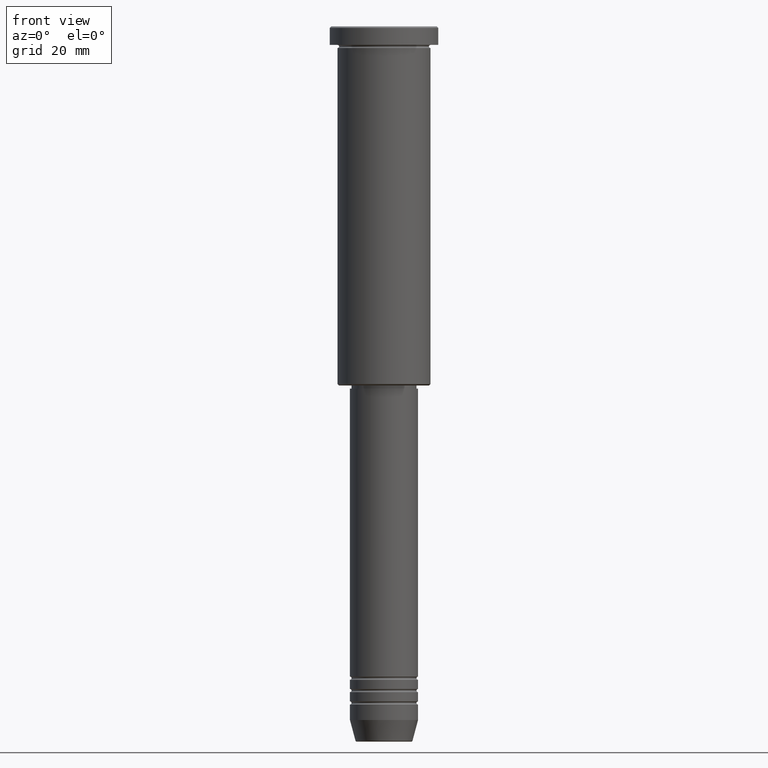
[diagram: clean part render]
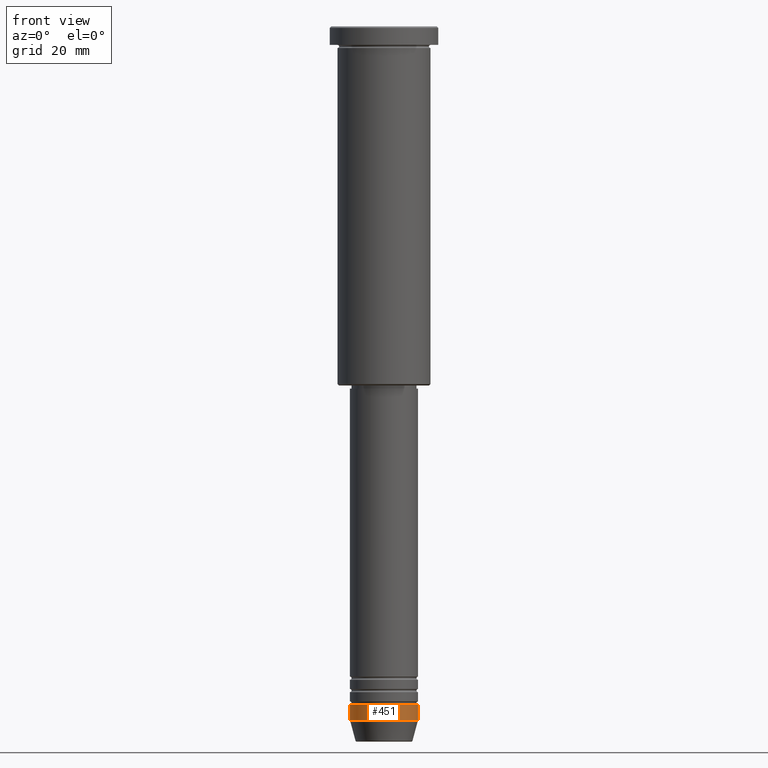
[diagram: same view with one face highlighted and labeled with its STEP entity id]
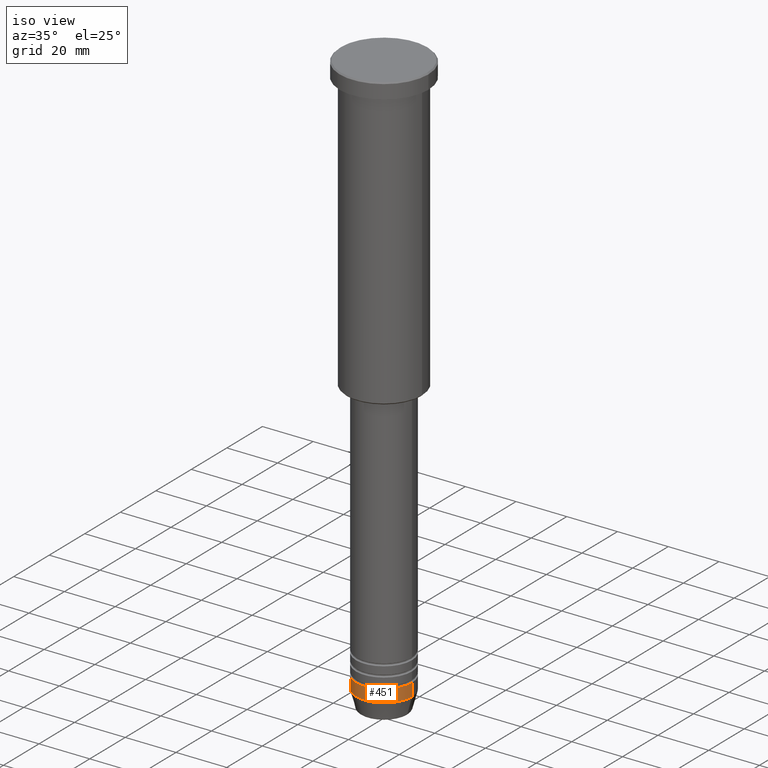
[diagram: same view with one face highlighted and labeled with its STEP entity id]
A machine part, front view. The second image highlights one B-rep face of the part: STEP entity #451.
A second angle (iso view) of the same face is appended — the face is thin or edge-on in the first view.
In plain terms, the highlighted cylindrical surface (edge-blend (fillet) strip) has radius 11 mm, axis along (-0, -0, 1).
Its self-contained STEP definition (entity closure, byte-faithful):
#20 = EDGE_CURVE ( 'NONE', #110, #510, #104, .T. ) ;
#42 = LINE ( 'NONE', #757, #578 ) ;
#98 = CARTESIAN_POINT ( 'NONE',  ( 0.000000000000000000, 0.000000000000000000, 0.000000000000000000 ) ) ;
#104 = LINE ( 'NONE', #456, #565 ) ;
#110 = VERTEX_POINT ( 'NONE', #745 ) ;
#217 = EDGE_LOOP ( 'NONE', ( #387, #987, #340, #1146 ) ) ;
#245 = CARTESIAN_POINT ( 'NONE',  ( 0.000000000000000000, 0.000000000000000000, -224.0000000000000284 ) ) ;
#287 = DIRECTION ( 'NONE',  ( -0.000000000000000000, -0.000000000000000000, 1.000000000000000000 ) ) ;
#288 = AXIS2_PLACEMENT_3D ( 'NONE', #413, #1032, #666 ) ;
#340 = ORIENTED_EDGE ( 'NONE', *, *, #869, .T. ) ;
#350 = DIRECTION ( 'NONE',  ( -0.000000000000000000, -0.000000000000000000, 1.000000000000000000 ) ) ;
#378 = CARTESIAN_POINT ( 'NONE',  ( 11.00000000000000000, 0.000000000000000000, -224.0000000000000284 ) ) ;
#387 = ORIENTED_EDGE ( 'NONE', *, *, #20, .F. ) ;
#396 = AXIS2_PLACEMENT_3D ( 'NONE', #98, #350, #639 ) ;
#413 = CARTESIAN_POINT ( 'NONE',  ( 0.000000000000000000, 0.000000000000000000, -219.0000000000000568 ) ) ;
#451 = ADVANCED_FACE ( 'NONE', ( #755 ), #930, .T. ) ;
#456 = CARTESIAN_POINT ( 'NONE',  ( -11.00000000000000000, 1.347111479062088405E-15, 0.000000000000000000 ) ) ;
#501 = VERTEX_POINT ( 'NONE', #772 ) ;
#503 = CIRCLE ( 'NONE', #288, 11.00000000000000000 ) ;
#510 = VERTEX_POINT ( 'NONE', #951 ) ;
#521 = DIRECTION ( 'NONE',  ( -0.000000000000000000, -0.000000000000000000, 1.000000000000000000 ) ) ;
#560 = DIRECTION ( 'NONE',  ( -0.000000000000000000, -0.000000000000000000, 1.000000000000000000 ) ) ;
#565 = VECTOR ( 'NONE', #560, 1000.000000000000000 ) ;
#578 = VECTOR ( 'NONE', #287, 1000.000000000000000 ) ;
#639 = DIRECTION ( 'NONE',  ( 1.000000000000000000, 0.000000000000000000, 0.000000000000000000 ) ) ;
#666 = DIRECTION ( 'NONE',  ( 1.000000000000000000, 0.000000000000000000, 0.000000000000000000 ) ) ;
#745 = CARTESIAN_POINT ( 'NONE',  ( -11.00000000000000000, 1.347111479062088405E-15, -224.0000000000000284 ) ) ;
#755 = FACE_OUTER_BOUND ( 'NONE', #217, .T. ) ;
#757 = CARTESIAN_POINT ( 'NONE',  ( 11.00000000000000000, 0.000000000000000000, 0.000000000000000000 ) ) ;
#772 = CARTESIAN_POINT ( 'NONE',  ( 11.00000000000000000, 0.000000000000000000, -219.0000000000000568 ) ) ;
#802 = CIRCLE ( 'NONE', #976, 11.00000000000000000 ) ;
#869 = EDGE_CURVE ( 'NONE', #927, #501, #42, .T. ) ;
#927 = VERTEX_POINT ( 'NONE', #378 ) ;
#930 = CYLINDRICAL_SURFACE ( 'NONE', #396, 11.00000000000000000 ) ;
#945 = EDGE_CURVE ( 'NONE', #110, #927, #802, .T. ) ;
#951 = CARTESIAN_POINT ( 'NONE',  ( -11.00000000000000000, 1.347111479062088405E-15, -219.0000000000000568 ) ) ;
#976 = AXIS2_PLACEMENT_3D ( 'NONE', #245, #521, #977 ) ;
#977 = DIRECTION ( 'NONE',  ( 1.000000000000000000, 0.000000000000000000, 0.000000000000000000 ) ) ;
#987 = ORIENTED_EDGE ( 'NONE', *, *, #945, .T. ) ;
#1032 = DIRECTION ( 'NONE',  ( -0.000000000000000000, -0.000000000000000000, 1.000000000000000000 ) ) ;
#1053 = EDGE_CURVE ( 'NONE', #510, #501, #503, .T. ) ;
#1146 = ORIENTED_EDGE ( 'NONE', *, *, #1053, .F. ) ;